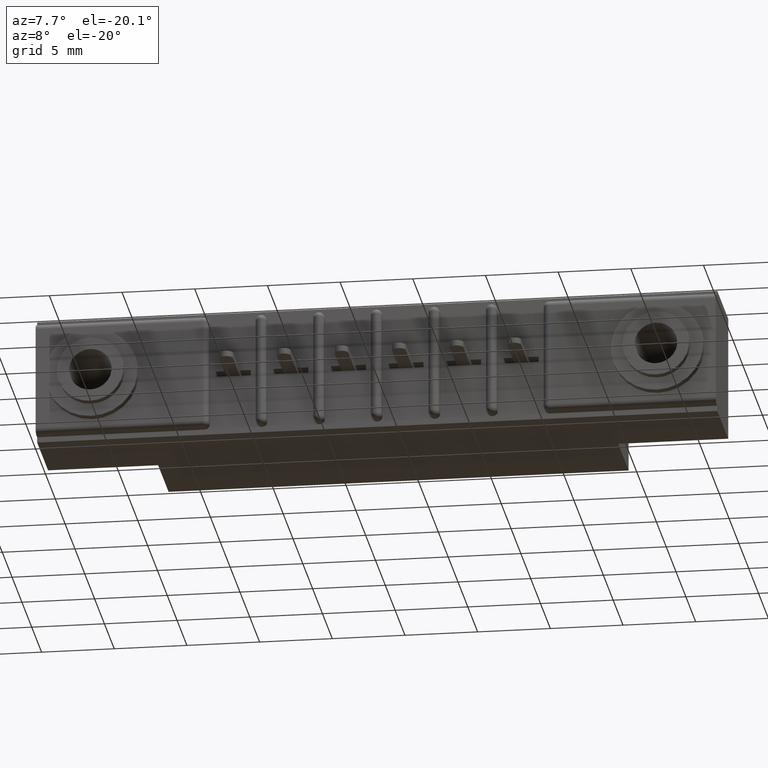
[diagram: clean part render]
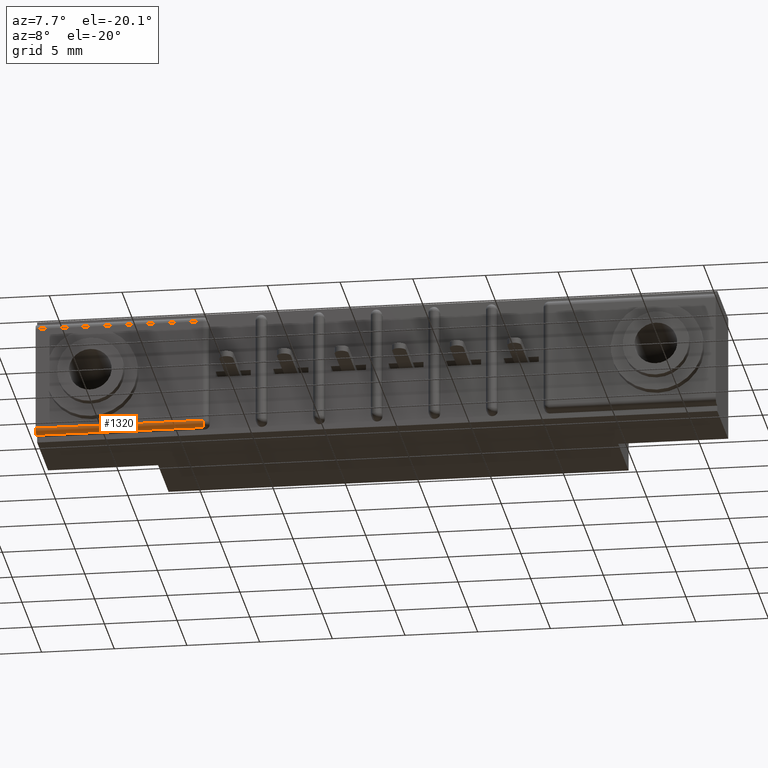
[diagram: same view with one face highlighted and labeled with its STEP entity id]
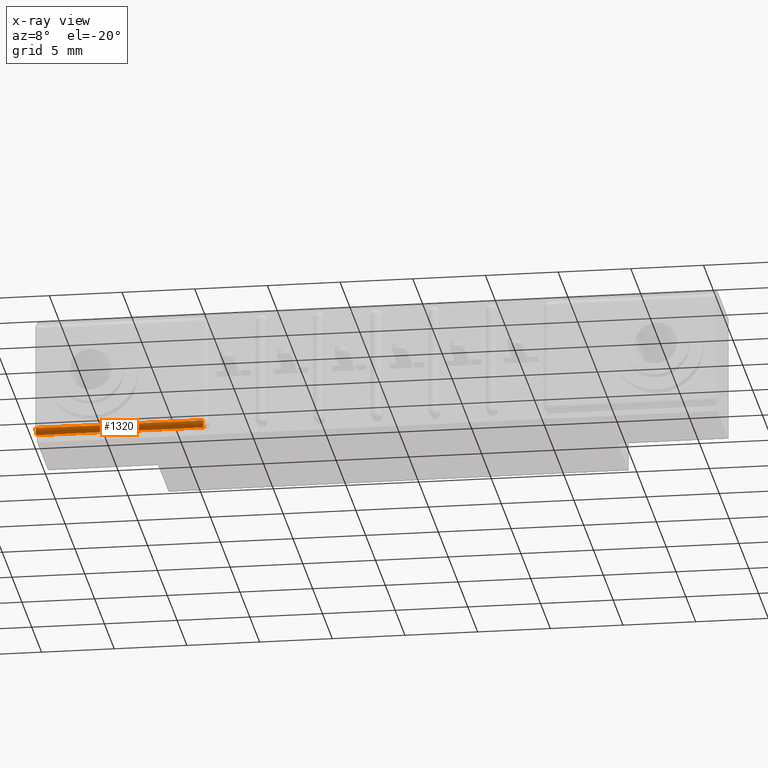
[diagram: x-ray of the same camera — body ghosted, the highlighted face saturated]
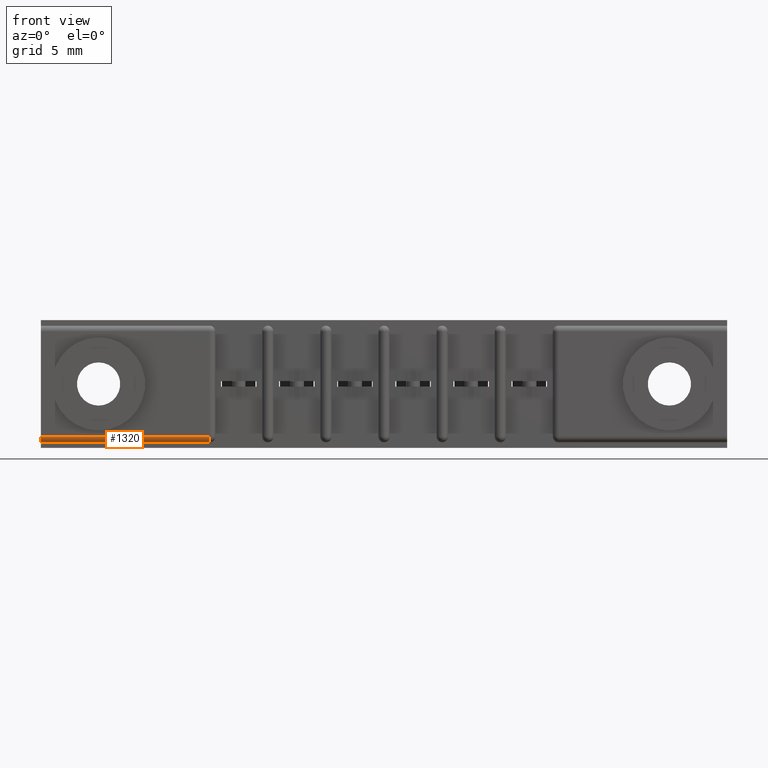
[diagram: same view with one face highlighted and labeled with its STEP entity id]
A machine part, auxiliary view. The second image highlights one B-rep face of the part: STEP entity #1320.
The next image is the same camera in x-ray: the body ghosted, the highlighted face saturated — about 0% of this face is hidden behind the body in this view.
A second angle (front view) of the same face is appended — the face is thin or edge-on in the first view.
In plain terms, the highlighted cylindrical surface (edge-blend (fillet) strip) has radius 0.381 mm, axis along (1, 0, 0).
Its self-contained STEP definition (entity closure, byte-faithful):
#282 = ORIENTED_EDGE ( 'NONE', *, *, #2593, .F. ) ;
#390 = CARTESIAN_POINT ( 'NONE',  ( 0.0000000000000000000, 0.01499999999999999900, -0.3280000000000000100 ) ) ;
#1273 = AXIS2_PLACEMENT_3D ( 'NONE', #10133, #9180, #10401 ) ;
#1320 = ADVANCED_FACE ( 'NONE', ( #8477 ), #8347, .T. ) ;
#1548 = CARTESIAN_POINT ( 'NONE',  ( 0.4530000000000000700, 0.01499999999999999900, -0.3280000000000000100 ) ) ;
#1817 = VERTEX_POINT ( 'NONE', #3934 ) ;
#1924 = VECTOR ( 'NONE', #6156, 39.37007874015748100 ) ;
#1938 = LINE ( 'NONE', #390, #1924 ) ;
#2279 = AXIS2_PLACEMENT_3D ( 'NONE', #9701, #11289, #8578 ) ;
#2320 = VERTEX_POINT ( 'NONE', #5899 ) ;
#2593 = EDGE_CURVE ( 'NONE', #10904, #9252, #1938, .T. ) ;
#3111 = EDGE_CURVE ( 'NONE', #10904, #2320, #7276, .T. ) ;
#3280 = DIRECTION ( 'NONE',  ( -1.000000000000000000, -0.0000000000000000000, 0.0000000000000000000 ) ) ;
#3934 = CARTESIAN_POINT ( 'NONE',  ( 0.0000000000000000000, 0.0000000000000000000, -0.3130000000000000600 ) ) ;
#4457 = ORIENTED_EDGE ( 'NONE', *, *, #5280, .F. ) ;
#4496 = ORIENTED_EDGE ( 'NONE', *, *, #4969, .F. ) ;
#4715 = ORIENTED_EDGE ( 'NONE', *, *, #3111, .T. ) ;
#4969 = EDGE_CURVE ( 'NONE', #9252, #1817, #9088, .T. ) ;
#5280 = EDGE_CURVE ( 'NONE', #1817, #2320, #10060, .T. ) ;
#5899 = CARTESIAN_POINT ( 'NONE',  ( 0.4530000000000000700, 0.0000000000000000000, -0.3130000000000000600 ) ) ;
#6156 = DIRECTION ( 'NONE',  ( -1.000000000000000000, 0.0000000000000000000, 0.0000000000000000000 ) ) ;
#6323 = CARTESIAN_POINT ( 'NONE',  ( 0.4530000000000000700, 0.01499999999999999900, -0.3130000000000000600 ) ) ;
#7095 = AXIS2_PLACEMENT_3D ( 'NONE', #6323, #3280, #8963 ) ;
#7276 = CIRCLE ( 'NONE', #7095, 0.01499999999999997700 ) ;
#8193 = VECTOR ( 'NONE', #9519, 39.37007874015748100 ) ;
#8347 = CYLINDRICAL_SURFACE ( 'NONE', #2279, 0.01499999999999997700 ) ;
#8477 = FACE_OUTER_BOUND ( 'NONE', #10818, .T. ) ;
#8578 = DIRECTION ( 'NONE',  ( 0.0000000000000000000, 0.0000000000000000000, -1.000000000000000000 ) ) ;
#8963 = DIRECTION ( 'NONE',  ( 0.0000000000000000000, 0.0000000000000000000, -1.000000000000000000 ) ) ;
#9088 = CIRCLE ( 'NONE', #1273, 0.01499999999999997700 ) ;
#9180 = DIRECTION ( 'NONE',  ( -1.000000000000000000, 0.0000000000000000000, -0.0000000000000000000 ) ) ;
#9252 = VERTEX_POINT ( 'NONE', #9901 ) ;
#9515 = CARTESIAN_POINT ( 'NONE',  ( 1.842000000000000700, 0.0000000000000000000, -0.3130000000000000600 ) ) ;
#9519 = DIRECTION ( 'NONE',  ( 1.000000000000000000, -0.0000000000000000000, -0.0000000000000000000 ) ) ;
#9701 = CARTESIAN_POINT ( 'NONE',  ( 1.842000000000000700, 0.01499999999999999900, -0.3130000000000000600 ) ) ;
#9901 = CARTESIAN_POINT ( 'NONE',  ( 0.0000000000000000000, 0.01499999999999999900, -0.3280000000000000100 ) ) ;
#10060 = LINE ( 'NONE', #9515, #8193 ) ;
#10133 = CARTESIAN_POINT ( 'NONE',  ( 0.0000000000000000000, 0.01499999999999999900, -0.3130000000000000600 ) ) ;
#10401 = DIRECTION ( 'NONE',  ( 0.0000000000000000000, 0.0000000000000000000, -1.000000000000000000 ) ) ;
#10818 = EDGE_LOOP ( 'NONE', ( #282, #4715, #4457, #4496 ) ) ;
#10904 = VERTEX_POINT ( 'NONE', #1548 ) ;
#11289 = DIRECTION ( 'NONE',  ( 1.000000000000000000, 0.0000000000000000000, -0.0000000000000000000 ) ) ;